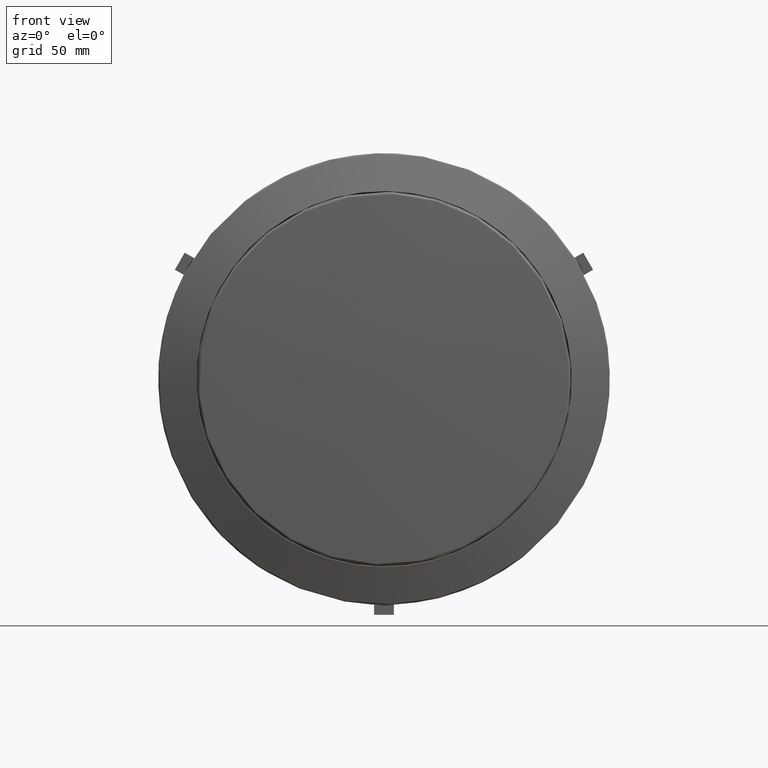
[diagram: clean part render]
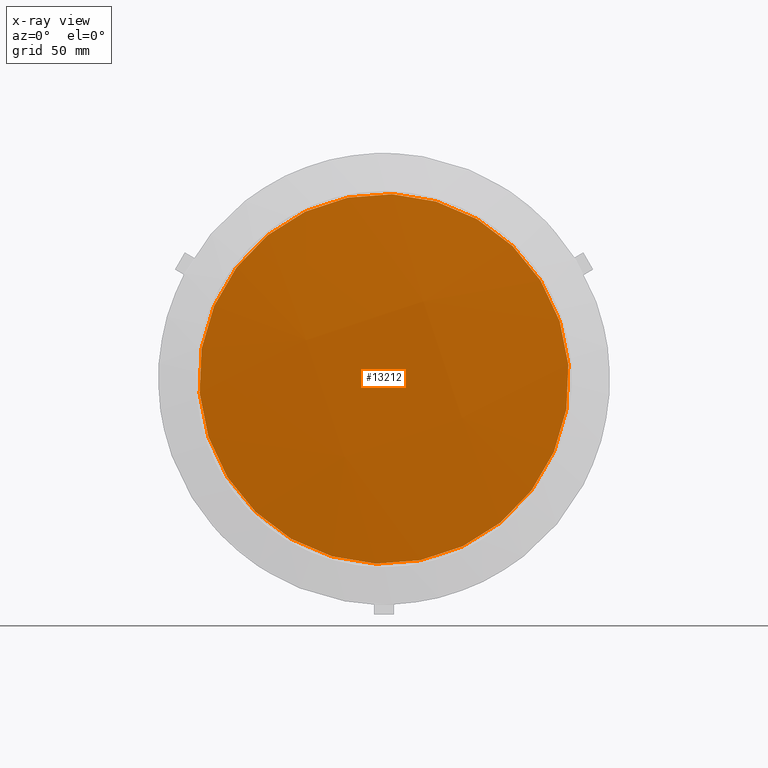
[diagram: x-ray — body ghosted, one internal face saturated and labeled with its STEP entity id]
A machine part, front view, then the same camera in x-ray: the body is ghosted and one INTERNAL B-rep face — a face not visible from any outside direction — is saturated and labeled: STEP entity #13212.
In plain terms, the highlighted face is a freeform B-spline surface patch.
Its self-contained STEP definition (entity closure, byte-faithful):
#250 = DIRECTION ( 'NONE',  ( 4.327485984281453295E-17, 1.000000000000000000, -2.195483205575784443E-16 ) ) ;
#324 = DIRECTION ( 'NONE',  ( -0.9495592904074821039, 0.0000000000000000000, -0.3135875539635445963 ) ) ;
#458 =( BOUNDED_SURFACE ( )  B_SPLINE_SURFACE ( 3, 3, ( 
 ( #5177, #10875, #12397, #6587 ),
 ( #3955, #15632, #14115, #16781 ),
 ( #3749, #9531, #2746, #3028 ),
 ( #7043, #13113, #4161, #17360 ) ),
 .UNSPECIFIED., .F., .F., .T. ) 
 B_SPLINE_SURFACE_WITH_KNOTS ( ( 4, 4 ),
 ( 4, 4 ),
 ( 0.0000000000000000000, 1.000000000000000000 ),
 ( 0.0000000000000000000, 1.000000000000000000 ),
 .UNSPECIFIED. ) 
 GEOMETRIC_REPRESENTATION_ITEM ( )  RATIONAL_B_SPLINE_SURFACE ( (
 ( 1.000000000000000000, 0.9970645555079297173, 0.9970645555079297173, 1.000000000000000000),
 ( 0.9970492283943839240, 0.9941224457285706695, 0.9941224457285706695, 0.9970492283943839240),
 ( 0.9970492283943839240, 0.9941224457285706695, 0.9941224457285706695, 0.9970492283943839240),
 ( 1.000000000000000000, 0.9970645555079297173, 0.9970645555079297173, 1.000000000000000000) ) ) 
 REPRESENTATION_ITEM ( '' )  SURFACE ( )  );
#1704 = CIRCLE ( 'NONE', #10789, 83.50000000000036948 ) ;
#1955 = EDGE_CURVE ( 'NONE', #2489, #11089, #7463, .T. ) ;
#1967 = ORIENTED_EDGE ( 'NONE', *, *, #1955, .T. ) ;
#2489 = VERTEX_POINT ( 'NONE', #6262 ) ;
#2746 = CARTESIAN_POINT ( 'NONE',  ( -35.55744558899880303, -22.68426080716862714, 17.98347248038987090 ) ) ;
#2915 = EDGE_LOOP ( 'NONE', ( #1967, #4721 ) ) ;
#3028 = CARTESIAN_POINT ( 'NONE',  ( -89.21053160788720504, -17.38009934668957968, 0.2647895321783236833 ) ) ;
#3532 = CARTESIAN_POINT ( 'NONE',  ( 79.28820074902468207, -16.13594307428456176, 26.18456075595585730 ) ) ;
#3749 = CARTESIAN_POINT ( 'NONE',  ( 71.98180936022909293, -17.33306133425081796, 53.49781292786106945 ) ) ;
#3955 = CARTESIAN_POINT ( 'NONE',  ( 89.79747401449957067, -17.32174953979834697, -0.4523451006671203589 ) ) ;
#4161 = CARTESIAN_POINT ( 'NONE',  ( -53.13844509849220543, -17.34800255144875436, 71.74741878149443153 ) ) ;
#4721 = ORIENTED_EDGE ( 'NONE', *, *, #8246, .T. ) ;
#5177 = CARTESIAN_POINT ( 'NONE',  ( 107.0572626924493704, -11.99445778524177442, -54.32012065978619830 ) ) ;
#6262 = CARTESIAN_POINT ( 'NONE',  ( -79.28820074902503734, -16.13594307428456531, -26.18456075595669574 ) ) ;
#6440 = CARTESIAN_POINT ( 'NONE',  ( 1.031724979748870947E-13, -16.13594307428456531, -6.727809383641613242E-13 ) ) ;
#6587 = CARTESIAN_POINT ( 'NONE',  ( -53.18046702920273106, -12.04121722975716402, -107.2378881164360678 ) ) ;
#7043 = CARTESIAN_POINT ( 'NONE',  ( 53.76797860182895761, -12.02829303303354358, 107.0527696425110662 ) ) ;
#7463 = CIRCLE ( 'NONE', #12027, 83.50000000000036948 ) ;
#8246 = EDGE_CURVE ( 'NONE', #11089, #2489, #1704, .T. ) ;
#9053 = CARTESIAN_POINT ( 'NONE',  ( 1.031724979748870947E-13, -16.13594307428456531, -6.727809383641613242E-13 ) ) ;
#9320 = DIRECTION ( 'NONE',  ( 4.327485984281453295E-17, 1.000000000000000000, -2.195483205575784443E-16 ) ) ;
#9531 = CARTESIAN_POINT ( 'NONE',  ( 18.33152280917440180, -22.66853530836014841, 35.78005449092462698 ) ) ;
#10789 = AXIS2_PLACEMENT_3D ( 'NONE', #9053, #250, #324 ) ;
#10875 = CARTESIAN_POINT ( 'NONE',  ( 53.72470319101791603, -17.29833408274742013, -71.93295121141214565 ) ) ;
#11067 = FACE_OUTER_BOUND ( 'NONE', #2915, .T. ) ;
#11089 = VERTEX_POINT ( 'NONE', #3532 ) ;
#12027 = AXIS2_PLACEMENT_3D ( 'NONE', #6440, #9320, #15117 ) ;
#12397 = CARTESIAN_POINT ( 'NONE',  ( 0.1548753610893515986, -17.31396645220540975, -89.62413852866403374 ) ) ;
#13113 = CARTESIAN_POINT ( 'NONE',  ( 0.4334053952486857653, -17.33236959175126657, 89.43927407409429975 ) ) ;
#13212 = ADVANCED_FACE ( 'NONE', ( #11067 ), #458, .F. ) ;
#14115 = CARTESIAN_POINT ( 'NONE',  ( -17.74043149652403173, -22.67288186409204798, -35.96623990242667190 ) ) ;
#15117 = DIRECTION ( 'NONE',  ( -0.9495592904074824370, 0.0000000000000000000, -0.3135875539635438192 ) ) ;
#15632 = CARTESIAN_POINT ( 'NONE',  ( 36.14786068501757654, -22.65715656261233235, -18.16988120929989492 ) ) ;
#16781 = CARTESIAN_POINT ( 'NONE',  ( -71.39284425871103679, -17.36878696198852978, -53.68470051073349225 ) ) ;
#17360 = CARTESIAN_POINT ( 'NONE',  ( -106.4758012990080971, -12.07505424306956598, 54.13300414223104440 ) ) ;